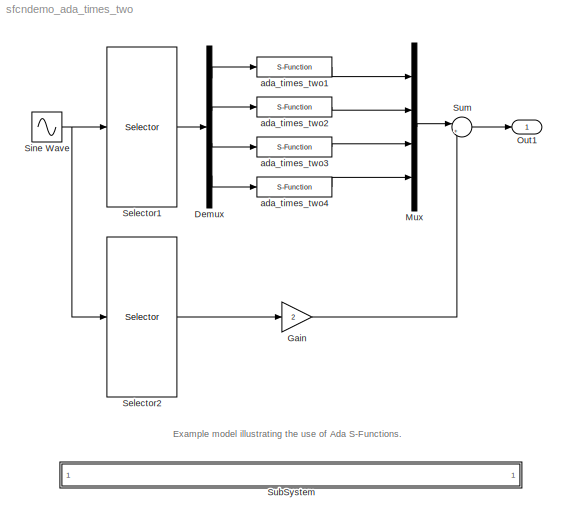
MODEL sfcndemo_ada_times_two
KIND model
BLOCK [Demux] Demux
  Outputs = [5, 4, 5, 1]
  Ports = [1, 4]
BLOCK [Gain] Gain
  Gain = 2
BLOCK [Mux] Mux
  DisplayOption = bar
  Ports = [4, 1]
BLOCK [Outport] Out1
  IconDisplay = Port number
BLOCK [Selector] Selector1
  Elements = [3 4 5 6 7 14 15 1 2 10 11 12 13 8 9]
  InputPortWidth = 15
  Ports = [1, 1]
BLOCK [Selector] Selector2
  Elements = [3 4 5 6 7 14 15 1 2 10 11 12 13 8 9]
  InputPortWidth = 15
  Ports = [1, 1]
BLOCK [Sin] Sine Wave
  Amplitude = [1:0.5:8]
  Frequency = 2*pi/10*[4.5:-0.25:1]
  Ports = [0, 1]
  SampleTime = 0.1
  SineType = Time based
BLOCK [SubSystem] SubSystem
  MaskDisplay = disp('matlabroot<path>');
  MaskIconFrame = on
  MaskIconOpaque = on
  MaskIconRotate = none
  MaskIconUnits = autoscale
  MinAlgLoopOccurrences = off
  OpenFcn = evalin('base','edit(fullfile(matlabroot,''simulink'',''ada'',''examples'',''times_two'',''times_two.adb''))')
  Ports = []
  PropExecContextAcrossSSBoundary = on
  RTWSystemCode = Auto
  TreatAsAtomicUnit = off
BLOCK [Sum] Sum
  IconShape = round
  Inputs = |+-
  Ports = [2, 1]
BLOCK [S-Function] ada_times_two1
  FunctionName = ada_times_two
  Ports = [1, 1]
BLOCK [S-Function] ada_times_two2
  FunctionName = ada_times_two
  Ports = [1, 1]
BLOCK [S-Function] ada_times_two3
  FunctionName = ada_times_two
  Ports = [1, 1]
BLOCK [S-Function] ada_times_two4
  FunctionName = ada_times_two
  Ports = [1, 1]
ANNOTATION (root): Example model illustrating the use of Ada S-Functions.
LINE Demux:1 -> ada_times_two1:1
LINE Demux:2 -> ada_times_two2:1
LINE Demux:3 -> ada_times_two3:1
LINE Demux:4 -> ada_times_two4:1
LINE Gain:1 -> Sum:2
LINE Mux:1 -> Sum:1
LINE Selector1:1 -> Demux:1
LINE Selector2:1 -> Gain:1
NET Sine Wave:1 -> Selector1:1, Selector2:1
LINE Sum:1 -> Out1:1
LINE ada_times_two1:1 -> Mux:1
LINE ada_times_two2:1 -> Mux:2
LINE ada_times_two3:1 -> Mux:3
LINE ada_times_two4:1 -> Mux:4
note: NET lines group one-source signal fan-out (src -> all destinations, sorted); 1:1 wires keep LINE
note: 1 file-system path scrubbed to <path> (not preserved elsewhere — flat text is the only slx artifact)
